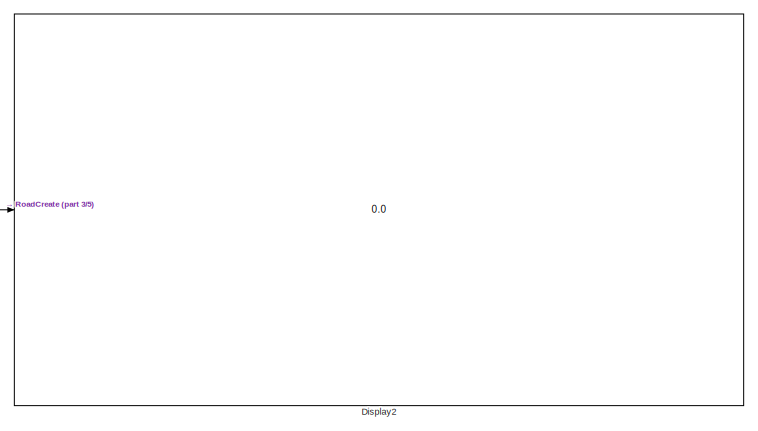
[diagram: root canvas - part 1/5, top center region]
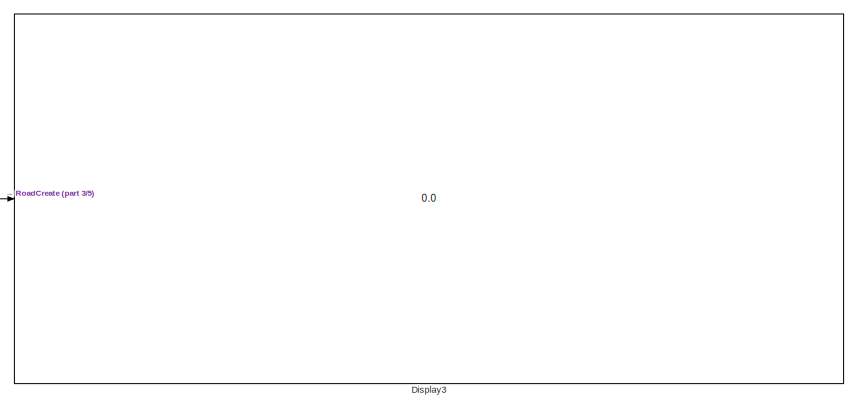
[diagram: root canvas - part 2/5, top right region]
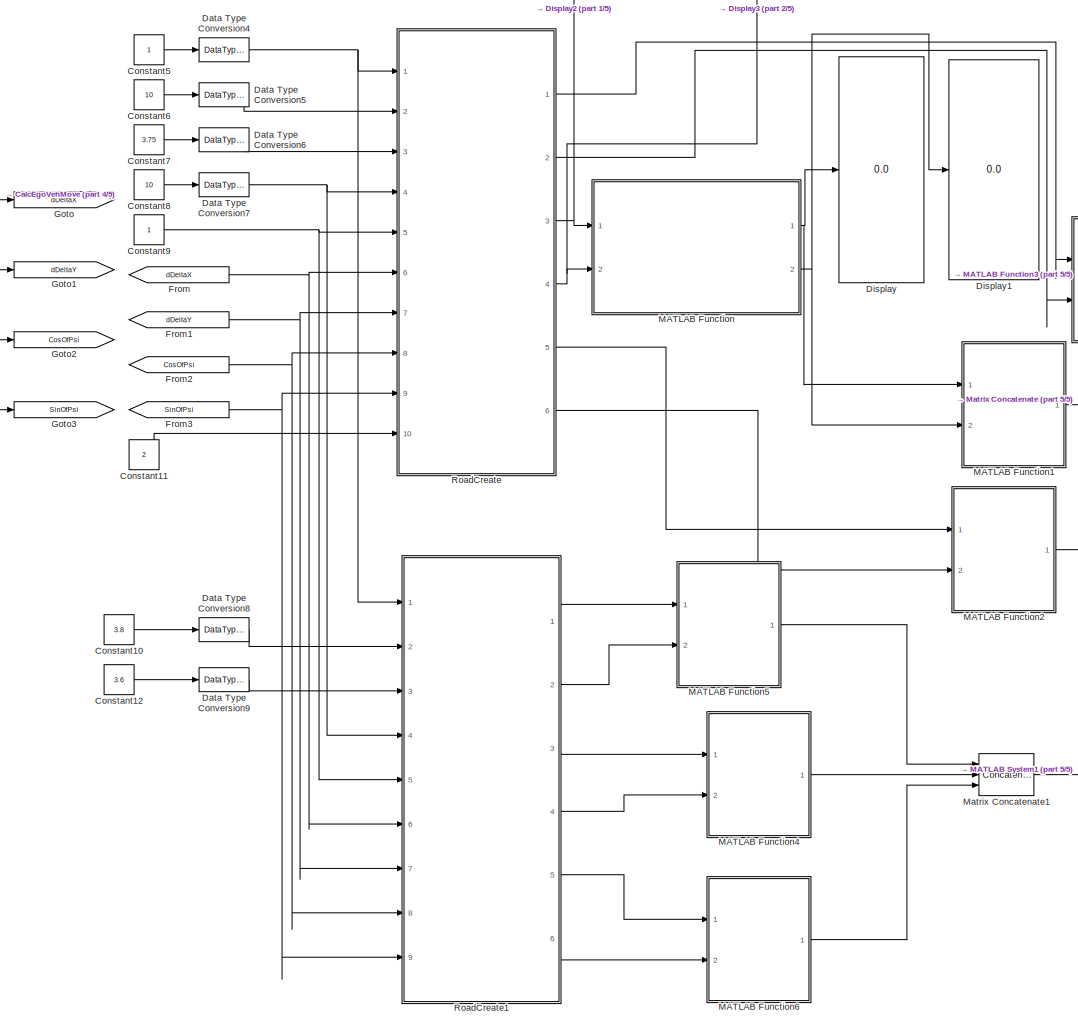
[diagram: root canvas - part 3/5, bottom center region]
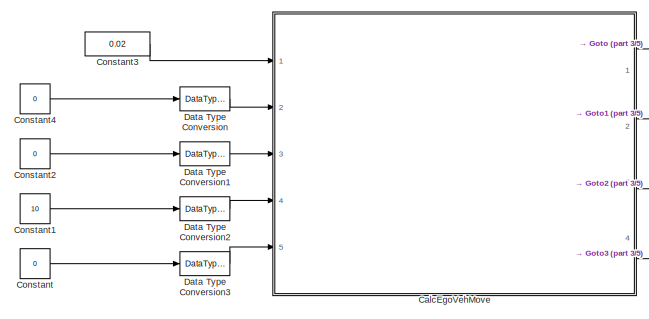
[diagram: root canvas - part 4/5, middle left region]
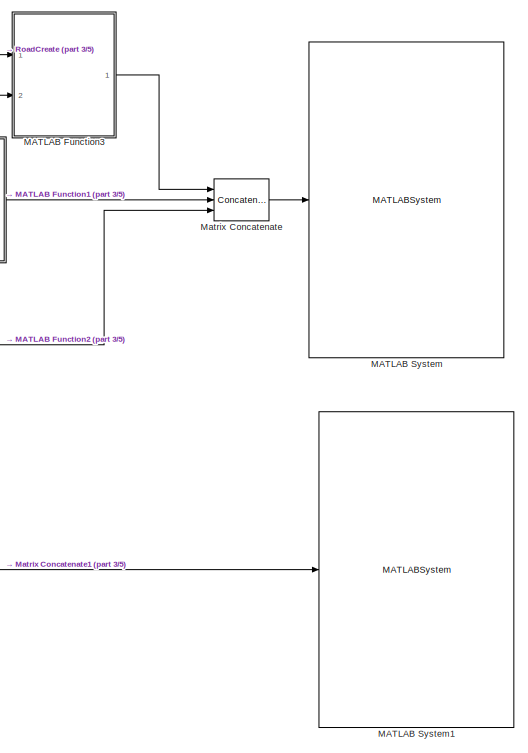
[diagram: root canvas - part 5/5, bottom right region]
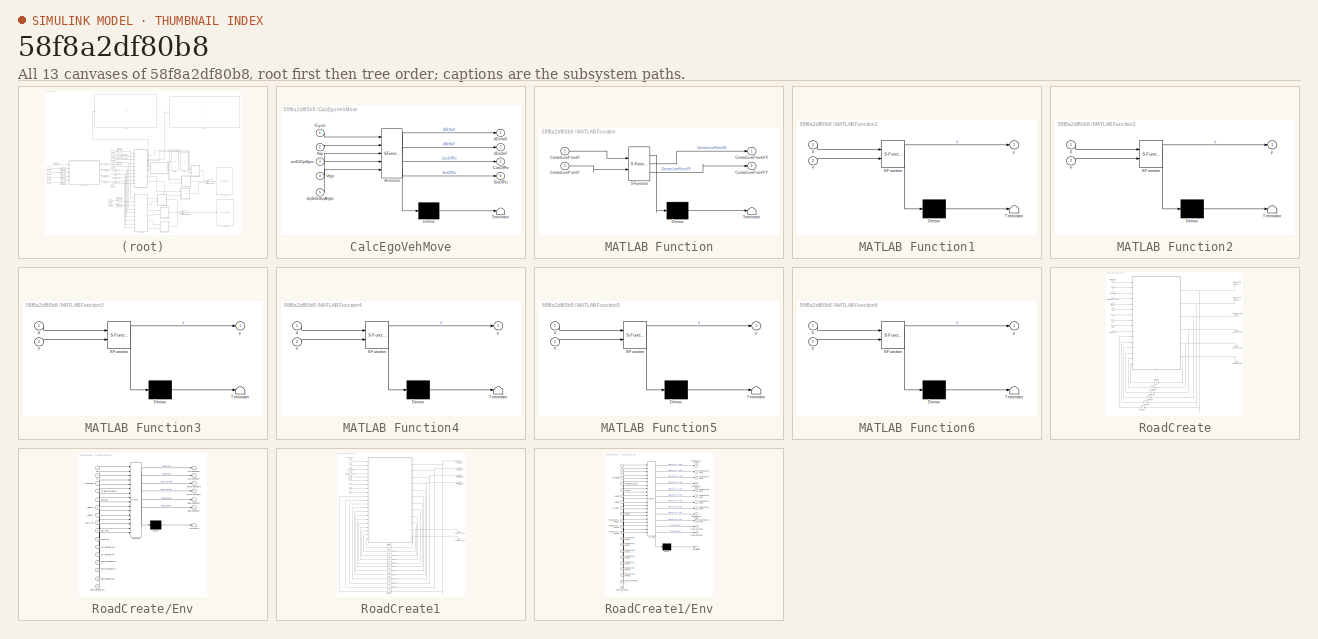
[diagram: thumbnail index - all 13 canvases of the model, root first then tree order]
MODEL slx_58f8a2df80b8
KIND model
CONFIG AbsTol = auto
CONFIG EnableMultiTasking = off
CONFIG FixedStep = 0.1
CONFIG MaxStep = auto
CONFIG MinStep = auto
CONFIG RelTol = 1e-3
CONFIG SampleTimeConstraint = Unconstrained
CONFIG SolverName = FixedStepDiscrete
CONFIG StartTime = 0.0
CONFIG StopTime = inf
BLOCK [SubSystem] CalcEgoVehMove
  ErrorFcn = Stateflow.Translate.translate
  PermitHierarchicalResolution = ExplicitOnly
  Ports = [5, 4]
  RequestExecContextInheritance = off
  SFBlockType = MATLAB Function
  TreatAsAtomicUnit = on
BLOCK [Demux] CalcEgoVehMove/ Demux 
  Outputs = 1
  Ports = [1, 1]
BLOCK [S-Function] CalcEgoVehMove/ SFunction 
  EnableBusSupport = on
  FunctionName = sf_sfun
  PortCounts = [5 5]
  Ports = [5, 5]
  SFcnIsStateOwnerBlock = off
  SFunctionDeploymentMode = off
  Tag = Stateflow S-Function 13
BLOCK [Terminator] CalcEgoVehMove/ Terminator 
BLOCK [Outport] CalcEgoVehMove/CosOfPsi
  Port = 3
BLOCK [Inport] CalcEgoVehMove/Kap
  Port = 2
BLOCK [Outport] CalcEgoVehMove/SinOfPsi
  Port = 4
BLOCK [Inport] CalcEgoVehMove/Vego
  Port = 4
BLOCK [Inport] CalcEgoVehMove/alpSideSlipAngle
  Port = 5
BLOCK [Outport] CalcEgoVehMove/dDeltaX
BLOCK [Outport] CalcEgoVehMove/dDeltaY
  Port = 2
BLOCK [Inport] CalcEgoVehMove/psiDtOptSync
  Port = 3
BLOCK [Inport] CalcEgoVehMove/tCycle
BLOCK [Constant] Constant
  Value = 0
BLOCK [Constant] Constant1
  Value = 10
BLOCK [Constant] Constant10
  Value = 3.8
BLOCK [Constant] Constant11
  Value = 2
BLOCK [Constant] Constant12
  Value = 3.6
BLOCK [Constant] Constant2
  Value = 0
BLOCK [Constant] Constant3
  Value = 0.02
BLOCK [Constant] Constant4
  Value = 0
BLOCK [Constant] Constant5
BLOCK [Constant] Constant6
  Value = 10
BLOCK [Constant] Constant7
  Value = 3.75
BLOCK [Constant] Constant8
  Value = 10
BLOCK [Constant] Constant9
BLOCK [DataTypeConversion] Data Type Conversion
  RndMeth = Floor
  SaturateOnIntegerOverflow = off
BLOCK [DataTypeConversion] Data Type Conversion1
  RndMeth = Floor
  SaturateOnIntegerOverflow = off
BLOCK [DataTypeConversion] Data Type Conversion2
  RndMeth = Floor
  SaturateOnIntegerOverflow = off
BLOCK [DataTypeConversion] Data Type Conversion3
  RndMeth = Floor
  SaturateOnIntegerOverflow = off
BLOCK [DataTypeConversion] Data Type Conversion4
  RndMeth = Floor
  SaturateOnIntegerOverflow = off
BLOCK [DataTypeConversion] Data Type Conversion5
  RndMeth = Floor
  SaturateOnIntegerOverflow = off
BLOCK [DataTypeConversion] Data Type Conversion6
  RndMeth = Floor
  SaturateOnIntegerOverflow = off
BLOCK [DataTypeConversion] Data Type Conversion7
  RndMeth = Floor
  SaturateOnIntegerOverflow = off
BLOCK [DataTypeConversion] Data Type Conversion8
  RndMeth = Floor
  SaturateOnIntegerOverflow = off
BLOCK [DataTypeConversion] Data Type Conversion9
  RndMeth = Floor
  SaturateOnIntegerOverflow = off
BLOCK [Display] Display
  Decimation = 1
  Ports = [1]
BLOCK [Display] Display1
  Decimation = 1
  Ports = [1]
BLOCK [Display] Display2
  Decimation = 1
  Ports = [1]
BLOCK [Display] Display3
  Decimation = 1
  Ports = [1]
BLOCK [From] From
  GotoTag = dDeltaX
BLOCK [From] From1
  GotoTag = dDeltaY
BLOCK [From] From2
  GotoTag = CosOfPsi
BLOCK [From] From3
  GotoTag = SinOfPsi
BLOCK [Goto] Goto
  GotoTag = dDeltaX
BLOCK [Goto] Goto1
  GotoTag = dDeltaY
BLOCK [Goto] Goto2
  GotoTag = CosOfPsi
BLOCK [Goto] Goto3
  GotoTag = SinOfPsi
BLOCK [SubSystem] MATLAB Function
  ErrorFcn = Stateflow.Translate.translate
  PermitHierarchicalResolution = ExplicitOnly
  Ports = [2, 2]
  RequestExecContextInheritance = off
  SFBlockType = MATLAB Function
  TreatAsAtomicUnit = on
BLOCK [Demux] MATLAB Function/ Demux 
  Outputs = 1
  Ports = [1, 1]
BLOCK [S-Function] MATLAB Function/ SFunction 
  EnableBusSupport = on
  FunctionName = sf_sfun
  PortCounts = [2 3]
  Ports = [2, 3]
  SFcnIsStateOwnerBlock = off
  SFunctionDeploymentMode = off
  Tag = Stateflow S-Function 2
BLOCK [Terminator] MATLAB Function/ Terminator 
BLOCK [Inport] MATLAB Function/CenterLinePointX
BLOCK [Outport] MATLAB Function/CenterLinePointXX
BLOCK [Inport] MATLAB Function/CenterLinePointY
  Port = 2
BLOCK [Outport] MATLAB Function/CenterLinePointYY
  Port = 2
BLOCK [SubSystem] MATLAB Function1
  ErrorFcn = Stateflow.Translate.translate
  PermitHierarchicalResolution = ExplicitOnly
  Ports = [2, 1]
  RequestExecContextInheritance = off
  SFBlockType = MATLAB Function
  TreatAsAtomicUnit = on
BLOCK [Demux] MATLAB Function1/ Demux 
  Outputs = 1
  Ports = [1, 1]
BLOCK [S-Function] MATLAB Function1/ SFunction 
  EnableBusSupport = on
  FunctionName = sf_sfun
  PortCounts = [2 2]
  Ports = [2, 2]
  SFcnIsStateOwnerBlock = off
  SFunctionDeploymentMode = off
  Tag = Stateflow S-Function 5
BLOCK [Terminator] MATLAB Function1/ Terminator 
BLOCK [Inport] MATLAB Function1/X
BLOCK [Inport] MATLAB Function1/Y
  Port = 2
BLOCK [Outport] MATLAB Function1/y
BLOCK [SubSystem] MATLAB Function2
  ErrorFcn = Stateflow.Translate.translate
  PermitHierarchicalResolution = ExplicitOnly
  Ports = [2, 1]
  RequestExecContextInheritance = off
  SFBlockType = MATLAB Function
  TreatAsAtomicUnit = on
BLOCK [Demux] MATLAB Function2/ Demux 
  Outputs = 1
  Ports = [1, 1]
BLOCK [S-Function] MATLAB Function2/ SFunction 
  EnableBusSupport = on
  FunctionName = sf_sfun
  PortCounts = [2 2]
  Ports = [2, 2]
  SFcnIsStateOwnerBlock = off
  SFunctionDeploymentMode = off
  Tag = Stateflow S-Function 1
BLOCK [Terminator] MATLAB Function2/ Terminator 
BLOCK [Inport] MATLAB Function2/X
BLOCK [Inport] MATLAB Function2/Y
  Port = 2
BLOCK [Outport] MATLAB Function2/y
BLOCK [SubSystem] MATLAB Function3
  ErrorFcn = Stateflow.Translate.translate
  PermitHierarchicalResolution = ExplicitOnly
  Ports = [2, 1]
  RequestExecContextInheritance = off
  SFBlockType = MATLAB Function
  TreatAsAtomicUnit = on
BLOCK [Demux] MATLAB Function3/ Demux 
  Outputs = 1
  Ports = [1, 1]
BLOCK [S-Function] MATLAB Function3/ SFunction 
  EnableBusSupport = on
  FunctionName = sf_sfun
  PortCounts = [2 2]
  Ports = [2, 2]
  SFcnIsStateOwnerBlock = off
  SFunctionDeploymentMode = off
  Tag = Stateflow S-Function 3
BLOCK [Terminator] MATLAB Function3/ Terminator 
BLOCK [Inport] MATLAB Function3/X
BLOCK [Inport] MATLAB Function3/Y
  Port = 2
BLOCK [Outport] MATLAB Function3/y
BLOCK [SubSystem] MATLAB Function4
  ErrorFcn = Stateflow.Translate.translate
  PermitHierarchicalResolution = ExplicitOnly
  Ports = [2, 1]
  RequestExecContextInheritance = off
  SFBlockType = MATLAB Function
  TreatAsAtomicUnit = on
BLOCK [Demux] MATLAB Function4/ Demux 
  Outputs = 1
  Ports = [1, 1]
BLOCK [S-Function] MATLAB Function4/ SFunction 
  EnableBusSupport = on
  FunctionName = sf_sfun
  PortCounts = [2 2]
  Ports = [2, 2]
  SFcnIsStateOwnerBlock = off
  SFunctionDeploymentMode = off
  Tag = Stateflow S-Function 7
BLOCK [Terminator] MATLAB Function4/ Terminator 
BLOCK [Inport] MATLAB Function4/X
BLOCK [Inport] MATLAB Function4/Y
  Port = 2
BLOCK [Outport] MATLAB Function4/y
BLOCK [SubSystem] MATLAB Function5
  ErrorFcn = Stateflow.Translate.translate
  PermitHierarchicalResolution = ExplicitOnly
  Ports = [2, 1]
  RequestExecContextInheritance = off
  SFBlockType = MATLAB Function
  TreatAsAtomicUnit = on
BLOCK [Demux] MATLAB Function5/ Demux 
  Outputs = 1
  Ports = [1, 1]
BLOCK [S-Function] MATLAB Function5/ SFunction 
  EnableBusSupport = on
  FunctionName = sf_sfun
  PortCounts = [2 2]
  Ports = [2, 2]
  SFcnIsStateOwnerBlock = off
  SFunctionDeploymentMode = off
  Tag = Stateflow S-Function 8
BLOCK [Terminator] MATLAB Function5/ Terminator 
BLOCK [Inport] MATLAB Function5/X
BLOCK [Inport] MATLAB Function5/Y
  Port = 2
BLOCK [Outport] MATLAB Function5/y
BLOCK [SubSystem] MATLAB Function6
  ErrorFcn = Stateflow.Translate.translate
  PermitHierarchicalResolution = ExplicitOnly
  Ports = [2, 1]
  RequestExecContextInheritance = off
  SFBlockType = MATLAB Function
  TreatAsAtomicUnit = on
BLOCK [Demux] MATLAB Function6/ Demux 
  Outputs = 1
  Ports = [1, 1]
BLOCK [S-Function] MATLAB Function6/ SFunction 
  EnableBusSupport = on
  FunctionName = sf_sfun
  PortCounts = [2 2]
  Ports = [2, 2]
  SFcnIsStateOwnerBlock = off
  SFunctionDeploymentMode = off
  Tag = Stateflow S-Function 9
BLOCK [Terminator] MATLAB Function6/ Terminator 
BLOCK [Inport] MATLAB Function6/X
BLOCK [Inport] MATLAB Function6/Y
  Port = 2
BLOCK [Outport] MATLAB Function6/y
BLOCK [MATLABSystem] MATLAB System
  ActorsColor = off
  Camera_Fov = 52
  Camera_Pos = [ 0, 0 ]
  Camera_Range = 100
  Camera_Yaw = 0
  HasActors = off
  HasLaneMarkings = off
  HasRadar = off
  HasRoads = off
  HasVision = on
  LabelFontSize = 4
  LabelOffset = [ 1.5, 1.5 ]
  MarkerSize = 4
  MaskDisplay = disp(['Bird''s-Eye' char(10) 'View']);\nport_label('input',1,'Vision');
  MaskType = BirdsEyeView17a
  Ports = [1]
  Radar_Fov = 52
  Radar_Pos = [ 0, 0 ]
  Radar_Range = 100
  Radar_Yaw = 0
  System = BirdsEyeView17a
  XLim = [ 0, 120 ]
  YLim = [ -30, 30 ]
  aspectratio = off
BLOCK [MATLABSystem] MATLAB System1
  ActorsColor = off
  Camera_Fov = 52
  Camera_Pos = [ 0, 0 ]
  Camera_Range = 100
  Camera_Yaw = 0
  HasActors = off
  HasLaneMarkings = off
  HasRadar = off
  HasRoads = off
  HasVision = on
  LabelFontSize = 4
  LabelOffset = [ 1.5, 1.5 ]
  MarkerSize = 4
  MaskDisplay = disp(['Bird''s-Eye' char(10) 'View']);\nport_label('input',1,'Vision');
  MaskType = BirdsEyeView17a
  Ports = [1]
  Radar_Fov = 52
  Radar_Pos = [ 0, 0 ]
  Radar_Range = 100
  Radar_Yaw = 0
  System = BirdsEyeView17a
  XLim = [ 0, 120 ]
  YLim = [ -30, 30 ]
  aspectratio = off
BLOCK [Concatenate] Matrix Concatenate
  Mode = Multidimensional array
  NumInputs = 3
  Ports = [3, 1]
BLOCK [Concatenate] Matrix Concatenate1
  Mode = Multidimensional array
  NumInputs = 3
  Ports = [3, 1]
BLOCK [SubSystem] RoadCreate
  Ports = [10, 6]
  RequestExecContextInheritance = off
BLOCK [Outport] RoadCreate/CenterLinePointX
  Port = 3
BLOCK [Outport] RoadCreate/CenterLinePointY
  Port = 4
BLOCK [Inport] RoadCreate/Direction
  Port = 5
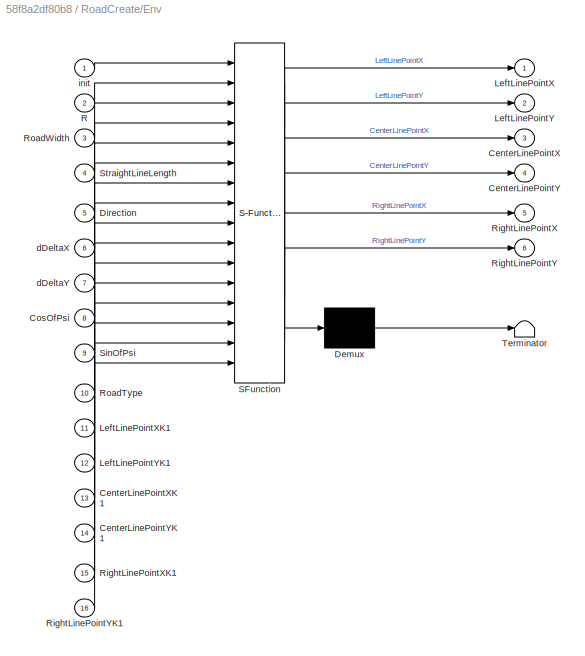
BLOCK [SubSystem] RoadCreate/Env
  ErrorFcn = Stateflow.Translate.translate
  PermitHierarchicalResolution = ExplicitOnly
  Ports = [16, 6]
  RequestExecContextInheritance = off
  SFBlockType = MATLAB Function
  TreatAsAtomicUnit = on
BLOCK [Demux] RoadCreate/Env/ Demux 
  Outputs = 1
  Ports = [1, 1]
BLOCK [S-Function] RoadCreate/Env/ SFunction 
  EnableBusSupport = on
  FunctionName = sf_sfun
  PortCounts = [16 7]
  Ports = [16, 7]
  SFcnIsStateOwnerBlock = off
  SFunctionDeploymentMode = off
  Tag = Stateflow S-Function 4
BLOCK [Terminator] RoadCreate/Env/ Terminator 
BLOCK [Outport] RoadCreate/Env/CenterLinePointX
  Port = 3
BLOCK [Inport] RoadCreate/Env/CenterLinePointXK1
  Port = 13
BLOCK [Outport] RoadCreate/Env/CenterLinePointY
  Port = 4
BLOCK [Inport] RoadCreate/Env/CenterLinePointYK1
  Port = 14
BLOCK [Inport] RoadCreate/Env/CosOfPsi
  Port = 8
BLOCK [Inport] RoadCreate/Env/Direction
  Port = 5
BLOCK [Outport] RoadCreate/Env/LeftLinePointX
BLOCK [Inport] RoadCreate/Env/LeftLinePointXK1
  Port = 11
BLOCK [Outport] RoadCreate/Env/LeftLinePointY
  Port = 2
BLOCK [Inport] RoadCreate/Env/LeftLinePointYK1
  Port = 12
BLOCK [Inport] RoadCreate/Env/R
  Port = 2
BLOCK [Outport] RoadCreate/Env/RightLinePointX
  Port = 5
BLOCK [Inport] RoadCreate/Env/RightLinePointXK1
  Port = 15
BLOCK [Outport] RoadCreate/Env/RightLinePointY
  Port = 6
BLOCK [Inport] RoadCreate/Env/RightLinePointYK1
  Port = 16
BLOCK [Inport] RoadCreate/Env/RoadType
  Port = 10
BLOCK [Inport] RoadCreate/Env/RoadWidth
  Port = 3
BLOCK [Inport] RoadCreate/Env/SinOfPsi
  Port = 9
BLOCK [Inport] RoadCreate/Env/StraightLineLength
  Port = 4
BLOCK [Inport] RoadCreate/Env/dDeltaX
  Port = 6
BLOCK [Inport] RoadCreate/Env/dDeltaY
  Port = 7
BLOCK [Inport] RoadCreate/Env/init
BLOCK [Outport] RoadCreate/LeftLinePointX
BLOCK [Outport] RoadCreate/LeftLinePointY
  Port = 2
BLOCK [Inport] RoadCreate/R
  Port = 2
BLOCK [Outport] RoadCreate/RightLinePointX
  Port = 5
BLOCK [Outport] RoadCreate/RightLinePointY
  Port = 6
BLOCK [Inport] RoadCreate/RoadType
  Port = 10
BLOCK [Inport] RoadCreate/RoadWidth
  Port = 3
BLOCK [Inport] RoadCreate/StraightLineLength
  Port = 4
BLOCK [Inport] RoadCreate/Trigger_Init
BLOCK [UnitDelay] RoadCreate/Unit Delay
  HasFrameUpgradeWarning = on
  NameLocation = top
  SampleTime = -1
BLOCK [UnitDelay] RoadCreate/Unit Delay1
  HasFrameUpgradeWarning = on
  NameLocation = top
  SampleTime = -1
BLOCK [UnitDelay] RoadCreate/Unit Delay2
  HasFrameUpgradeWarning = on
  NameLocation = top
  SampleTime = -1
BLOCK [UnitDelay] RoadCreate/Unit Delay3
  HasFrameUpgradeWarning = on
  NameLocation = top
  SampleTime = -1
BLOCK [UnitDelay] RoadCreate/Unit Delay4
  HasFrameUpgradeWarning = on
  NameLocation = top
  SampleTime = -1
BLOCK [UnitDelay] RoadCreate/Unit Delay5
  HasFrameUpgradeWarning = on
  NameLocation = top
  SampleTime = -1
BLOCK [Inport] RoadCreate/cos
  Port = 8
BLOCK [Inport] RoadCreate/dx
  Port = 6
BLOCK [Inport] RoadCreate/dy
  Port = 7
BLOCK [Inport] RoadCreate/sin
  Port = 9
BLOCK [SubSystem] RoadCreate1
  Ports = [9, 6]
  RequestExecContextInheritance = off
BLOCK [Outport] RoadCreate1/CenterLinePointX
  Port = 3
BLOCK [Outport] RoadCreate1/CenterLinePointY
  Port = 4
BLOCK [Inport] RoadCreate1/Direction
  Port = 5
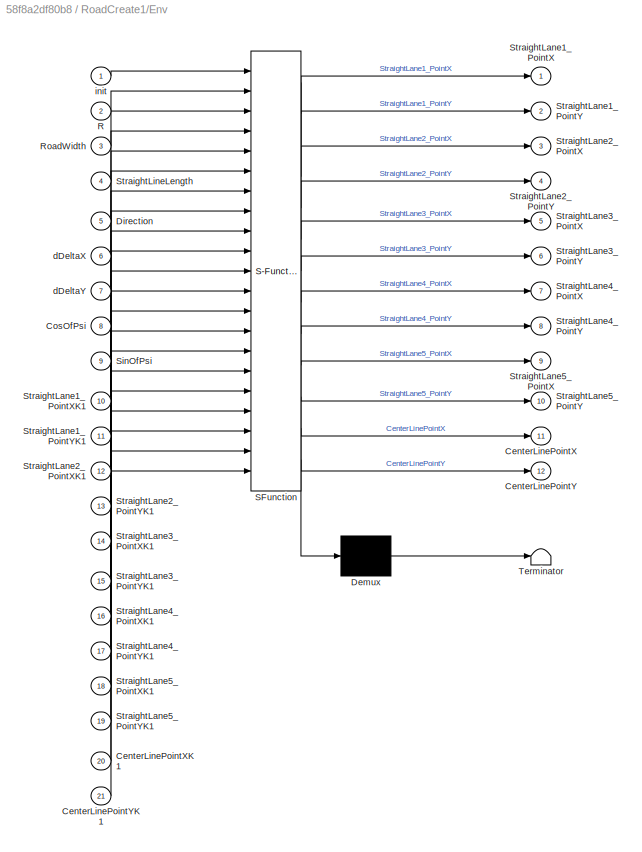
BLOCK [SubSystem] RoadCreate1/Env
  ErrorFcn = Stateflow.Translate.translate
  PermitHierarchicalResolution = ExplicitOnly
  Ports = [21, 12]
  RequestExecContextInheritance = off
  SFBlockType = MATLAB Function
  TreatAsAtomicUnit = on
BLOCK [Demux] RoadCreate1/Env/ Demux 
  Outputs = 1
  Ports = [1, 1]
BLOCK [S-Function] RoadCreate1/Env/ SFunction 
  EnableBusSupport = on
  FunctionName = sf_sfun
  PortCounts = [21 13]
  Ports = [21, 13]
  SFcnIsStateOwnerBlock = off
  SFunctionDeploymentMode = off
  Tag = Stateflow S-Function 6
BLOCK [Terminator] RoadCreate1/Env/ Terminator 
BLOCK [Outport] RoadCreate1/Env/CenterLinePointX
  Port = 11
BLOCK [Inport] RoadCreate1/Env/CenterLinePointXK1
  Port = 20
BLOCK [Outport] RoadCreate1/Env/CenterLinePointY
  Port = 12
BLOCK [Inport] RoadCreate1/Env/CenterLinePointYK1
  Port = 21
BLOCK [Inport] RoadCreate1/Env/CosOfPsi
  Port = 8
BLOCK [Inport] RoadCreate1/Env/Direction
  Port = 5
BLOCK [Inport] RoadCreate1/Env/R
  Port = 2
BLOCK [Inport] RoadCreate1/Env/RoadWidth
  Port = 3
BLOCK [Inport] RoadCreate1/Env/SinOfPsi
  Port = 9
BLOCK [Outport] RoadCreate1/Env/StraightLane1_PointX
BLOCK [Inport] RoadCreate1/Env/StraightLane1_PointXK1
  Port = 10
BLOCK [Outport] RoadCreate1/Env/StraightLane1_PointY
  Port = 2
BLOCK [Inport] RoadCreate1/Env/StraightLane1_PointYK1
  Port = 11
BLOCK [Outport] RoadCreate1/Env/StraightLane2_PointX
  Port = 3
BLOCK [Inport] RoadCreate1/Env/StraightLane2_PointXK1
  Port = 12
BLOCK [Outport] RoadCreate1/Env/StraightLane2_PointY
  Port = 4
BLOCK [Inport] RoadCreate1/Env/StraightLane2_PointYK1
  Port = 13
BLOCK [Outport] RoadCreate1/Env/StraightLane3_PointX
  Port = 5
BLOCK [Inport] RoadCreate1/Env/StraightLane3_PointXK1
  Port = 14
BLOCK [Outport] RoadCreate1/Env/StraightLane3_PointY
  Port = 6
BLOCK [Inport] RoadCreate1/Env/StraightLane3_PointYK1
  Port = 15
BLOCK [Outport] RoadCreate1/Env/StraightLane4_PointX
  Port = 7
BLOCK [Inport] RoadCreate1/Env/StraightLane4_PointXK1
  Port = 16
BLOCK [Outport] RoadCreate1/Env/StraightLane4_PointY
  Port = 8
BLOCK [Inport] RoadCreate1/Env/StraightLane4_PointYK1
  Port = 17
BLOCK [Outport] RoadCreate1/Env/StraightLane5_PointX
  Port = 9
BLOCK [Inport] RoadCreate1/Env/StraightLane5_PointXK1
  Port = 18
BLOCK [Outport] RoadCreate1/Env/StraightLane5_PointY
  Port = 10
BLOCK [Inport] RoadCreate1/Env/StraightLane5_PointYK1
  Port = 19
BLOCK [Inport] RoadCreate1/Env/StraightLineLength
  Port = 4
BLOCK [Inport] RoadCreate1/Env/dDeltaX
  Port = 6
BLOCK [Inport] RoadCreate1/Env/dDeltaY
  Port = 7
BLOCK [Inport] RoadCreate1/Env/init
BLOCK [Inport] RoadCreate1/R
  Port = 2
BLOCK [Inport] RoadCreate1/RoadWidth
  Port = 3
BLOCK [Outport] RoadCreate1/StraightLane1_PointX
BLOCK [Outport] RoadCreate1/StraightLane1_PointY
  Port = 2
BLOCK [Outport] RoadCreate1/StraightLane2_PointX
  Port = 5
BLOCK [Outport] RoadCreate1/StraightLane2_PointY
  Port = 6
BLOCK [Inport] RoadCreate1/StraightLineLength
  Port = 4
BLOCK [Inport] RoadCreate1/Trigger_Init
BLOCK [UnitDelay] RoadCreate1/Unit Delay
  HasFrameUpgradeWarning = on
  NameLocation = top
  SampleTime = -1
BLOCK [UnitDelay] RoadCreate1/Unit Delay1
  HasFrameUpgradeWarning = on
  NameLocation = top
  SampleTime = -1
BLOCK [UnitDelay] RoadCreate1/Unit Delay10
  HasFrameUpgradeWarning = on
  NameLocation = top
  SampleTime = -1
BLOCK [UnitDelay] RoadCreate1/Unit Delay11
  HasFrameUpgradeWarning = on
  NameLocation = top
  SampleTime = -1
BLOCK [UnitDelay] RoadCreate1/Unit Delay2
  HasFrameUpgradeWarning = on
  NameLocation = top
  SampleTime = -1
BLOCK [UnitDelay] RoadCreate1/Unit Delay3
  HasFrameUpgradeWarning = on
  NameLocation = top
  SampleTime = -1
BLOCK [UnitDelay] RoadCreate1/Unit Delay4
  HasFrameUpgradeWarning = on
  NameLocation = top
  SampleTime = -1
BLOCK [UnitDelay] RoadCreate1/Unit Delay5
  HasFrameUpgradeWarning = on
  NameLocation = top
  SampleTime = -1
BLOCK [UnitDelay] RoadCreate1/Unit Delay6
  HasFrameUpgradeWarning = on
  NameLocation = top
  SampleTime = -1
BLOCK [UnitDelay] RoadCreate1/Unit Delay7
  HasFrameUpgradeWarning = on
  NameLocation = top
  SampleTime = -1
BLOCK [UnitDelay] RoadCreate1/Unit Delay8
  HasFrameUpgradeWarning = on
  NameLocation = top
  SampleTime = -1
BLOCK [UnitDelay] RoadCreate1/Unit Delay9
  HasFrameUpgradeWarning = on
  NameLocation = top
  SampleTime = -1
BLOCK [Inport] RoadCreate1/cos
  Port = 8
BLOCK [Inport] RoadCreate1/dx
  Port = 6
BLOCK [Inport] RoadCreate1/dy
  Port = 7
BLOCK [Inport] RoadCreate1/sin
  Port = 9
LINE CalcEgoVehMove:1 -> Goto:1
LINE CalcEgoVehMove:2 -> Goto1:1
LINE CalcEgoVehMove:3 -> Goto2:1
LINE CalcEgoVehMove:4 -> Goto3:1
LINE Constant10:1 -> Data Type Conversion8:1
LINE Constant11:1 -> RoadCreate:10
LINE Constant12:1 -> Data Type Conversion9:1
LINE Constant1:1 -> Data Type Conversion2:1
LINE Constant2:1 -> Data Type Conversion1:1
LINE Constant3:1 -> CalcEgoVehMove:1
LINE Constant4:1 -> Data Type Conversion:1
LINE Constant5:1 -> Data Type Conversion4:1
LINE Constant6:1 -> Data Type Conversion5:1
LINE Constant7:1 -> Data Type Conversion6:1
LINE Constant8:1 -> Data Type Conversion7:1
NET Constant9:1 -> RoadCreate1:5, RoadCreate:5
LINE Constant:1 -> Data Type Conversion3:1
LINE Data Type Conversion1:1 -> CalcEgoVehMove:3
LINE Data Type Conversion2:1 -> CalcEgoVehMove:4
LINE Data Type Conversion3:1 -> CalcEgoVehMove:5
NET Data Type Conversion4:1 -> RoadCreate1:1, RoadCreate:1
LINE Data Type Conversion5:1 -> RoadCreate:2
LINE Data Type Conversion6:1 -> RoadCreate:3
NET Data Type Conversion7:1 -> RoadCreate1:4, RoadCreate:4
LINE Data Type Conversion8:1 -> RoadCreate1:2
LINE Data Type Conversion9:1 -> RoadCreate1:3
LINE Data Type Conversion:1 -> CalcEgoVehMove:2
NET From1:1 -> RoadCreate1:7, RoadCreate:7
NET From2:1 -> RoadCreate1:8, RoadCreate:8
NET From3:1 -> RoadCreate1:9, RoadCreate:9
NET From:1 -> RoadCreate1:6, RoadCreate:6
LINE MATLAB Function1:1 -> Matrix Concatenate:2
LINE MATLAB Function2:1 -> Matrix Concatenate:3
LINE MATLAB Function3:1 -> Matrix Concatenate:1
LINE MATLAB Function4:1 -> Matrix Concatenate1:2
LINE MATLAB Function5:1 -> Matrix Concatenate1:1
LINE MATLAB Function6:1 -> Matrix Concatenate1:3
NET MATLAB Function:1 -> Display:1, MATLAB Function1:1
NET MATLAB Function:2 -> Display1:1, MATLAB Function1:2
LINE Matrix Concatenate1:1 -> MATLAB System1:1
LINE Matrix Concatenate:1 -> MATLAB System:1
LINE RoadCreate/Direction:1 -> RoadCreate/Env:5
NET RoadCreate/Env:1 -> RoadCreate/LeftLinePointX:1, RoadCreate/Unit Delay5:1
NET RoadCreate/Env:2 -> RoadCreate/LeftLinePointY:1, RoadCreate/Unit Delay4:1
NET RoadCreate/Env:3 -> RoadCreate/CenterLinePointX:1, RoadCreate/Unit Delay3:1
NET RoadCreate/Env:4 -> RoadCreate/CenterLinePointY:1, RoadCreate/Unit Delay2:1
NET RoadCreate/Env:5 -> RoadCreate/RightLinePointX:1, RoadCreate/Unit Delay1:1
NET RoadCreate/Env:6 -> RoadCreate/RightLinePointY:1, RoadCreate/Unit Delay:1
LINE RoadCreate/R:1 -> RoadCreate/Env:2
LINE RoadCreate/RoadType:1 -> RoadCreate/Env:10
LINE RoadCreate/RoadWidth:1 -> RoadCreate/Env:3
LINE RoadCreate/StraightLineLength:1 -> RoadCreate/Env:4
LINE RoadCreate/Trigger_Init:1 -> RoadCreate/Env:1
LINE RoadCreate/Unit Delay1:1 -> RoadCreate/Env:15
LINE RoadCreate/Unit Delay2:1 -> RoadCreate/Env:14
LINE RoadCreate/Unit Delay3:1 -> RoadCreate/Env:13
LINE RoadCreate/Unit Delay4:1 -> RoadCreate/Env:12
LINE RoadCreate/Unit Delay5:1 -> RoadCreate/Env:11
LINE RoadCreate/Unit Delay:1 -> RoadCreate/Env:16
LINE RoadCreate/cos:1 -> RoadCreate/Env:8
LINE RoadCreate/dx:1 -> RoadCreate/Env:6
LINE RoadCreate/dy:1 -> RoadCreate/Env:7
LINE RoadCreate/sin:1 -> RoadCreate/Env:9
LINE RoadCreate1/Direction:1 -> RoadCreate1/Env:5
NET RoadCreate1/Env:1 -> RoadCreate1/StraightLane1_PointX:1, RoadCreate1/Unit Delay:1
LINE RoadCreate1/Env:10 -> RoadCreate1/Unit Delay3:1
NET RoadCreate1/Env:11 -> RoadCreate1/CenterLinePointX:1, RoadCreate1/Unit Delay2:1
NET RoadCreate1/Env:12 -> RoadCreate1/CenterLinePointY:1, RoadCreate1/Unit Delay1:1
NET RoadCreate1/Env:2 -> RoadCreate1/StraightLane1_PointY:1, RoadCreate1/Unit Delay10:1
NET RoadCreate1/Env:3 -> RoadCreate1/StraightLane2_PointX:1, RoadCreate1/Unit Delay11:1
NET RoadCreate1/Env:4 -> RoadCreate1/StraightLane2_PointY:1, RoadCreate1/Unit Delay9:1
LINE RoadCreate1/Env:5 -> RoadCreate1/Unit Delay8:1
LINE RoadCreate1/Env:6 -> RoadCreate1/Unit Delay7:1
LINE RoadCreate1/Env:7 -> RoadCreate1/Unit Delay6:1
LINE RoadCreate1/Env:8 -> RoadCreate1/Unit Delay5:1
LINE RoadCreate1/Env:9 -> RoadCreate1/Unit Delay4:1
LINE RoadCreate1/R:1 -> RoadCreate1/Env:2
LINE RoadCreate1/RoadWidth:1 -> RoadCreate1/Env:3
LINE RoadCreate1/StraightLineLength:1 -> RoadCreate1/Env:4
LINE RoadCreate1/Trigger_Init:1 -> RoadCreate1/Env:1
LINE RoadCreate1/Unit Delay10:1 -> RoadCreate1/Env:11
LINE RoadCreate1/Unit Delay11:1 -> RoadCreate1/Env:12
LINE RoadCreate1/Unit Delay1:1 -> RoadCreate1/Env:21
LINE RoadCreate1/Unit Delay2:1 -> RoadCreate1/Env:20
LINE RoadCreate1/Unit Delay3:1 -> RoadCreate1/Env:19
LINE RoadCreate1/Unit Delay4:1 -> RoadCreate1/Env:18
LINE RoadCreate1/Unit Delay5:1 -> RoadCreate1/Env:17
LINE RoadCreate1/Unit Delay6:1 -> RoadCreate1/Env:16
LINE RoadCreate1/Unit Delay7:1 -> RoadCreate1/Env:15
LINE RoadCreate1/Unit Delay8:1 -> RoadCreate1/Env:14
LINE RoadCreate1/Unit Delay9:1 -> RoadCreate1/Env:13
LINE RoadCreate1/Unit Delay:1 -> RoadCreate1/Env:10
LINE RoadCreate1/cos:1 -> RoadCreate1/Env:8
LINE RoadCreate1/dx:1 -> RoadCreate1/Env:6
LINE RoadCreate1/dy:1 -> RoadCreate1/Env:7
LINE RoadCreate1/sin:1 -> RoadCreate1/Env:9
LINE RoadCreate1:1 -> MATLAB Function5:1
LINE RoadCreate1:2 -> MATLAB Function5:2
LINE RoadCreate1:3 -> MATLAB Function4:1
LINE RoadCreate1:4 -> MATLAB Function4:2
LINE RoadCreate1:5 -> MATLAB Function6:1
LINE RoadCreate1:6 -> MATLAB Function6:2
LINE RoadCreate:1 -> MATLAB Function3:1
LINE RoadCreate:2 -> MATLAB Function3:2
NET RoadCreate:3 -> Display2:1, MATLAB Function:1
NET RoadCreate:4 -> Display3:1, MATLAB Function:2
LINE RoadCreate:5 -> MATLAB Function2:1
LINE RoadCreate:6 -> MATLAB Function2:2
note: NET lines group one-source signal fan-out (src -> all destinations, sorted); 1:1 wires keep LINE
CHART RoadCreate1/Env states=1 transitions=1
  STATE_LABEL 'eML_blk_kernel()'
  STATE_LABEL 'SCRIPT:\nfunction [StraightLane1_PointX,StraightLane1_PointY,StraightLane2_PointX,StraightLane2_PointY,...\n    StraightLane3_PointX,StraightLane3_PointY,StraightLane4_PointX,StraightLane4_PointY,...\n    StraightLane5_PointX,StraightLane5_PointY,CenterLinePointX,CenterLinePointY] = ...\n    Env(init,R,RoadWidth,StraightLineLength,Direction,dDeltaX,dDeltaY,CosOfPsi,SinOfPsi,...\n    StraightLane1_Point...<+3608ch>'
CHART MATLAB Function4 states=1 transitions=1
  STATE_LABEL 'eML_blk_kernel()'
  STATE_LABEL 'SCRIPT:\nfunction y = fcn(X,Y)\n\ny = zeros(length(X),9);\nfor i = 1:1:length(X)\n    y(i,1) = X(i);\n    y(i,2) = Y(i);\n    y(i,3) = 1;\n    y(i,4) = 0;\n    y(i,5) = 0;\n    y(i,6) = i;\n    y(i,7) = 0;\n    y(i,8) = 1;\nend\nend\n'  <repeated x6 — deduplicated; at blocks: MATLAB Function4, MATLAB Function5, MATLAB Function6, MATLAB Function2, MATLAB Function3, MATLAB Function1>
CHART MATLAB Function5 states=1 transitions=1
  STATE_LABEL 'eML_blk_kernel()'
CHART MATLAB Function6 states=1 transitions=1
  STATE_LABEL 'eML_blk_kernel()'
CHART CalcEgoVehMove states=1 transitions=1
  STATE_LABEL 'eML_blk_kernel()'
  STATE_LABEL 'SCRIPT:\nfunction [dDeltaX,dDeltaY,CosOfPsi,SinOfPsi] = EgoVehicleMovement(tCycle,Kap,psiDtOptSync,Vego,alpSideSlipAngle)\n%#codegen\nif Kap==0\n    dDeltaX = Vego*tCycle;\n    dDeltaY = 0;\n    CosOfPsi = 1;\n    SinOfPsi = 0;\nelse\n    t_kap = Kap;\n    if ((Kap>0.125)||(Kap<-0.125))&&(Vego>1)\n        t_kapPsiDtSync = psiDtOptSync/Vego;\n        if abs(t_kapPsiDtSync)>abs(Kap)\n            t_kap = t_kapPsi...<+389ch>'
CHART MATLAB Function2 states=1 transitions=1
  STATE_LABEL 'eML_blk_kernel()'
CHART MATLAB Function states=1 transitions=1
  STATE_LABEL 'eML_blk_kernel()'
  STATE_LABEL 'SCRIPT:\nfunction [CenterLinePointXX,CenterLinePointYY]= fcn(CenterLinePointX,CenterLinePointY)\nCenterLinePointXX = single(zeros(101,1));\nCenterLinePointYY = single(zeros(101,1));\nj = 1;\nfor i = 0:3:300\n    if i==0\n        i = 1;\n    end\n    CenterLinePointXX(j,1) = CenterLinePointX(i,1);\n    CenterLinePointYY(j,1) = CenterLinePointY(i,1);\n    j = j + 1;\nend\n\n\nend'
CHART MATLAB Function3 states=1 transitions=1
  STATE_LABEL 'eML_blk_kernel()'
CHART RoadCreate/Env states=1 transitions=1
  STATE_LABEL 'eML_blk_kernel()'
  STATE_LABEL 'SCRIPT:\nfunction [LeftLinePointX,LeftLinePointY,CenterLinePointX,CenterLinePointY,RightLinePointX,RightLinePointY] = ...\n    Env(init,R,RoadWidth,StraightLineLength,Direction,dDeltaX,dDeltaY,CosOfPsi,SinOfPsi,RoadType,...\n    LeftLinePointXK1,LeftLinePointYK1,CenterLinePointXK1,CenterLinePointYK1,RightLinePointXK1,RightLinePointYK1)\n\n% R = single(20);                % m\n% RoadWidth = single(3.75);...<+3608ch>'
CHART MATLAB Function1 states=1 transitions=1
  STATE_LABEL 'eML_blk_kernel()'
CHART  states=0 transitions=0
CHART  states=0 transitions=0
CHART  states=0 transitions=0
CHART  states=0 transitions=0
CHART  states=0 transitions=0
CHART  states=0 transitions=0
CHART  states=0 transitions=0
CHART  states=0 transitions=0
CHART  states=0 transitions=0
CHART  states=0 transitions=0
